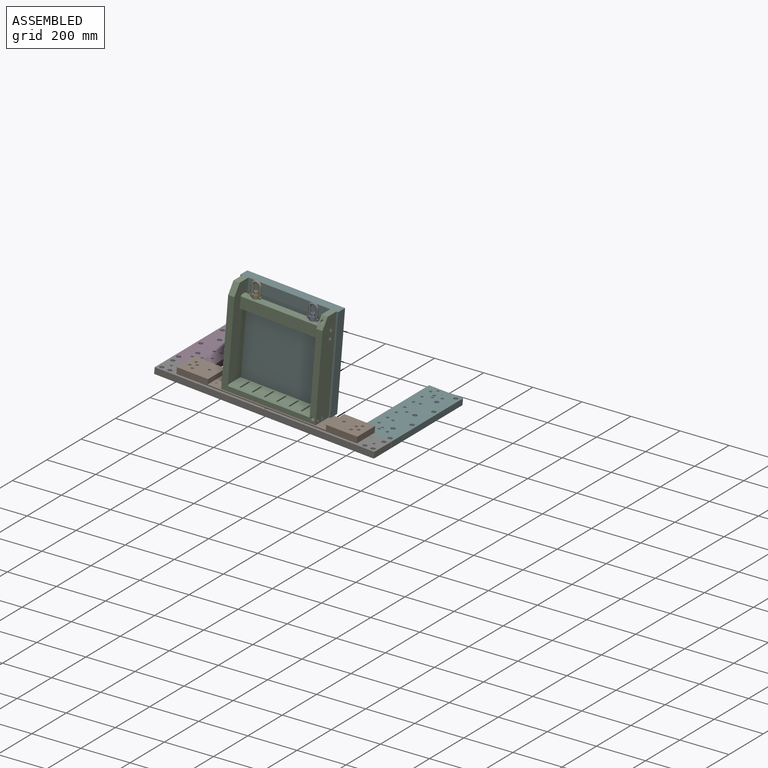
[diagram: assembled view]
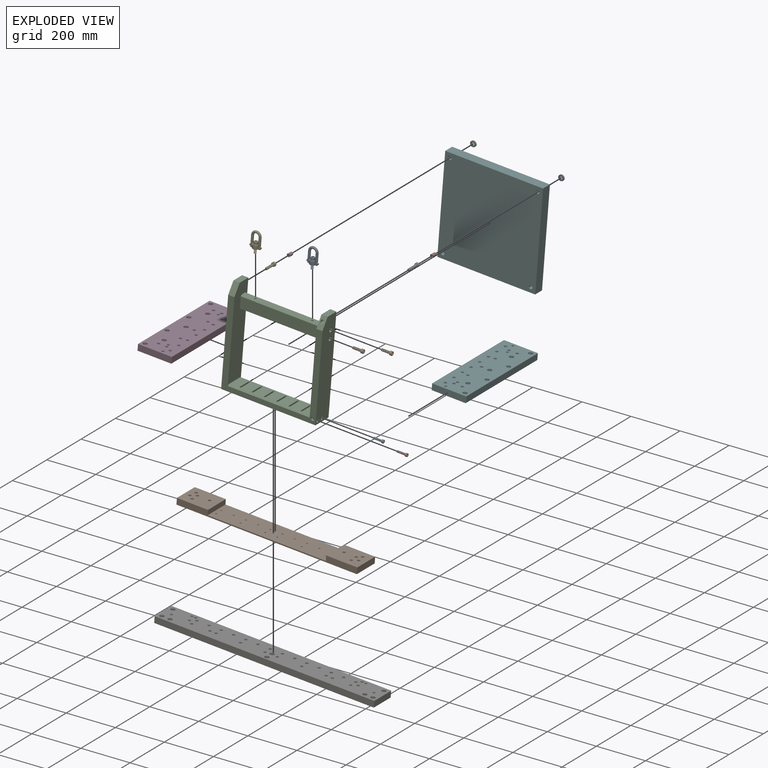
[diagram: exploded view]
GUIDED TOUR — MATED ASSEMBLY WITH SUBASSEMBLIES (Onshape document 2e98514b22ffc82cd9aeb843, AutoMate assembly 2e98514b22ffc82cd9aeb843_ddf671fd6050322d3ed2cb32_9506bc91af3bad2d1c995257_default)

This assembly has 25 component occurrences arranged in 18 top-level units: 15 individual components plus 3 subassemblies (S0, S1, S2). The tour has two levels: first the top level, where each subassembly is treated as one rigid unit; then each subassembly is toured internally in its own section (nesting deeper than one subassembly level is flattened into its subassembly's section).

Components are labeled P0..P24 across the whole record; subassembly units are labeled S0..S2. A mate is a constraint between two units; its type names the relative motion it leaves free:
  CYLINDRICAL — leaves both rotation about and translation along the listed axis free,
  PLANAR — leaves sliding in the plane through the listed point (normal = the listed direction) and rotation about that normal free.
Axis/direction vectors are unit vectors and 'through' points are millimeter coordinates, both in the assembly's world frame.

TOP-LEVEL MATES (between units; each subassembly's internal mates are listed in its own section)
  1. PLANAR "Planar 15": P15 <-> P13, direction (0.000, -1.000, 0.000) through (-750.69, 109.16, 287.09) mm
  2. PLANAR "Planar 11": P0 <-> P6, direction (0.000, -1.000, 0.000) through (-392.07, 103.76, 257.72) mm
  3. PLANAR "Planar 6": P16 <-> P7, direction (0.000, -1.000, 0.000) through (-230.72, 92.02, -154.45) mm
  4. PLANAR "Planar 1": P24 <-> P7, direction (-0.081, 0.000, -0.997) through (-605.76, 55.00, -111.28) mm
  5. PLANAR "Planar 2": P14 <-> P7, direction (-0.997, 0.000, 0.081) through (-1056.01, 300.52, -87.49) mm
  6. PLANAR "Planar 8": P6 <-> P24, direction (-0.081, 0.000, -0.997) through (-602.21, 103.76, -106.47) mm
  7. CYLINDRICAL "Cylindrical 16": S0 <-> P22, axis (0.997, 0.000, -0.081) through (-413.10, 45.66, -109.08) mm
  8. PLANAR "Planar 21": P22 <-> S0, direction (-0.997, 0.000, 0.081) through (-417.08, 42.47, -108.75) mm
  9. CYLINDRICAL "Cylindrical 4": P6 <-> P13, axis (0.000, 1.000, 0.000) through (-750.89, 93.76, 286.84) mm
  10. CYLINDRICAL "Cylindrical 11": S0 <-> S1, axis (0.081, 0.000, 0.997) through (-690.09, 58.36, 251.00) mm
  11. PLANAR "Planar 9": P21 <-> P6, direction (0.000, 1.000, 0.000) through (-392.07, 103.76, 257.72) mm
  12. CYLINDRICAL "Cylindrical 6": P17 <-> P6, axis (0.000, -1.000, 0.000) through (-392.07, 114.16, 257.72) mm
  13. PLANAR "Planar 19": P10 <-> S0, direction (-0.997, 0.000, 0.081) through (-394.90, 55.86, 189.35) mm
  14. PLANAR "Planar 3": P7 <-> P14, direction (0.000, 1.000, 0.000) through (-608.48, 92.02, -123.80) mm
  15. CYLINDRICAL "Cylindrical 7": P13 <-> P6, axis (0.000, 1.000, 0.000) through (-750.89, 106.46, 286.84) mm
  16. PLANAR "Planar 4": P7 <-> P14, direction (0.081, 0.000, 0.997) through (-951.32, 47.02, -83.25) mm
  17. PLANAR "Planar 13": P13 <-> P6, direction (0.000, -1.000, 0.000) through (-750.89, 103.76, 286.84) mm
  18. CYLINDRICAL "Cylindrical 8": P15 <-> P6, axis (0.000, -1.000, 0.000) through (-750.89, 114.16, 286.84) mm
  19. PLANAR "Planar 10": P6 <-> S0, direction (0.000, -1.000, 0.000) through (-586.03, 83.76, 92.87) mm
  20. CYLINDRICAL "Cylindrical 2": P6 <-> S0, axis (0.000, 1.000, 0.000) through (-780.00, 103.76, -71.98) mm
  21. CYLINDRICAL "Cylindrical 9": S2 <-> S0, axis (-0.081, 0.000, -0.997) through (-456.39, 58.36, 250.20) mm
  22. CYLINDRICAL "Cylindrical 3": P21 <-> P6, axis (0.000, -1.000, 0.000) through (-392.07, 94.26, 257.72) mm
  23. CYLINDRICAL "Cylindrical 10": S0 <-> P6, axis (0.000, 1.000, 0.000) through (-750.89, 83.76, 286.84) mm
  24. CYLINDRICAL "Cylindrical 12": P1 <-> S0, axis (-0.997, 0.000, 0.081) through (-387.60, 58.36, 217.54) mm
  25. CYLINDRICAL "Cylindrical 13": P10 <-> S0, axis (-0.997, 0.000, 0.081) through (-390.27, 58.36, 184.63) mm
  26. PLANAR "Planar 16": S2 <-> S0, direction (-0.081, 0.000, -0.997) through (-457.85, 58.36, 232.16) mm
  27. PLANAR "Planar 12": P17 <-> P0, direction (0.000, -1.000, 0.000) through (-392.07, 109.16, 257.72) mm
  28. PLANAR "Planar 20": P8 <-> S0, direction (-0.997, 0.000, 0.081) through (-417.08, 17.07, -108.75) mm
  29. PLANAR "Planar 5": P16 <-> P7, direction (0.081, 0.000, 0.997) through (-243.65, 221.02, -140.66) mm
  30. CYLINDRICAL "Cylindrical 1": P24 <-> P7, axis (0.081, 0.000, 0.997) through (-944.77, 77.02, -64.31) mm
  31. CYLINDRICAL "Cylindrical 5": P0 <-> P21, axis (0.000, 1.000, 0.000) through (-392.07, 109.16, 257.72) mm
  32. PLANAR "Planar 7": P16 <-> P7, direction (0.997, 0.000, -0.081) through (-160.95, 301.02, -160.11) mm
  33. PLANAR "Planar 17": S1 <-> S0, direction (-0.081, 0.000, -0.997) through (-690.09, 58.36, 251.00) mm
  34. PLANAR "Planar 14": P3 <-> P13, direction (0.000, 1.000, 0.000) through (-750.89, 103.76, 286.84) mm
  35. PLANAR "Planar 18": P1 <-> S0, direction (-0.997, 0.000, 0.081) through (-392.23, 55.86, 222.26) mm
  36. CYLINDRICAL "Cylindrical 15": P8 <-> S0, axis (-0.997, 0.000, 0.081) through (-413.10, 20.26, -109.08) mm
  37. CYLINDRICAL "Cylindrical 14": P3 <-> P15, axis (0.000, -1.000, 0.000) through (-750.89, 94.26, 286.84) mm

TOP-LEVEL ASSEMBLY ORDER
  1. S0 — the base component [order verified]
  2. P10 [order verified]
  3. S2 [order verified]
  4. S1 [order verified]
  5. P1 [order verified]
  6. P15 [order verified]
  7. P3 [order verified]
  8. P17 [order verified]
  9. P21 [order verified]
  10. P22 [order verified]
  11. P8 [order verified]
  12. P13 [order verified]
  13. P0 [order verified]
  14. P6 [order verified]
  15. P24 [order verified]
  16. P7 [order verified]
  17. P16 [order verified]
  18. P14 [order verified]
(P0, P1, P3, S1, P8, S2, P10, P13, P15, P21, P22 verified with a relaxed clearance tolerance: the source model stores slight part interference there.)
Order-tag legend:
  [order verified] — this step's position reverses a verified removal order: the component was checked to insert without passing through the ones already placed.

Of the 25 component occurrences, 4 carry the full construction recipe — the FeatureScript program that regenerates the part's solid from scratch; the rest are supplied as boundary geometry only. Each toured unit is shown spotlighted twice — assembled, then exploded with a leader line back to its socket (green = recipe-attached component, orange = geometry-only, blue = subassembly unit; the rest desaturated gray).
NOTE — document 3 of 3 of this assembly tour. The two overview renders and the header above are repeated from document 1; the component sections below continue where the previous document stopped.
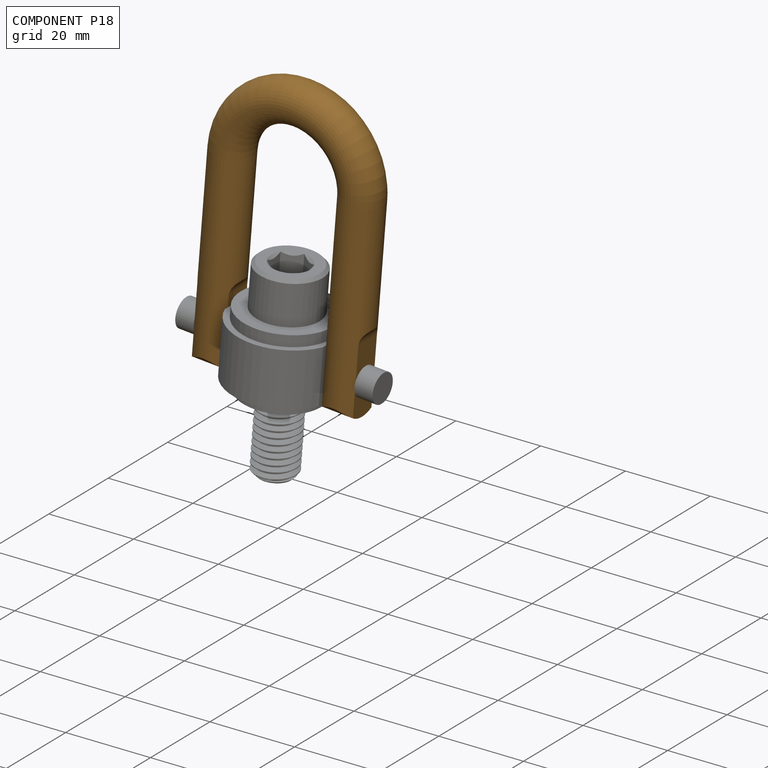
[diagram: component P18 — assembled]
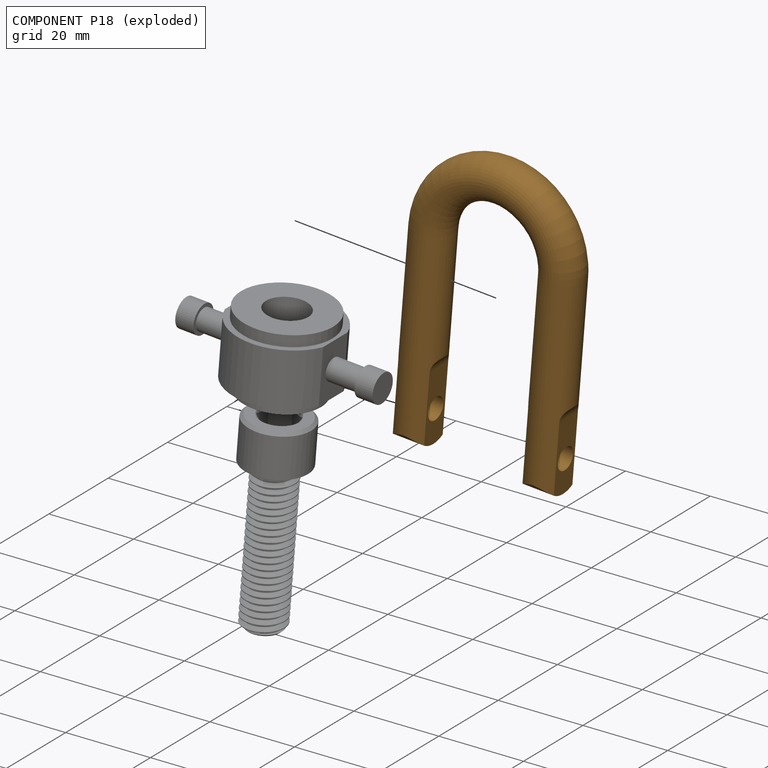
[diagram: component P18 — exploded]
COMPONENT P18 — geometry summary (no construction recipe available for this part):
  bounding box: 68.4 x 43.7 x 9.7 mm
  B-rep topology: 1 solid, 15 faces, 84 edges
  volume: 9675 mm^3 (33% of its bounding box)
  symmetry: 2-fold rotationally symmetric about the y axis; mirror-symmetric across its x mid-plane, z mid-plane
Held by: PLANAR mate "Planar 2" to P23; CYLINDRICAL mate "Cylindrical 2" to P23; PLANAR mate "Planar 2" to P23; CYLINDRICAL mate "Cylindrical 2" to P23.
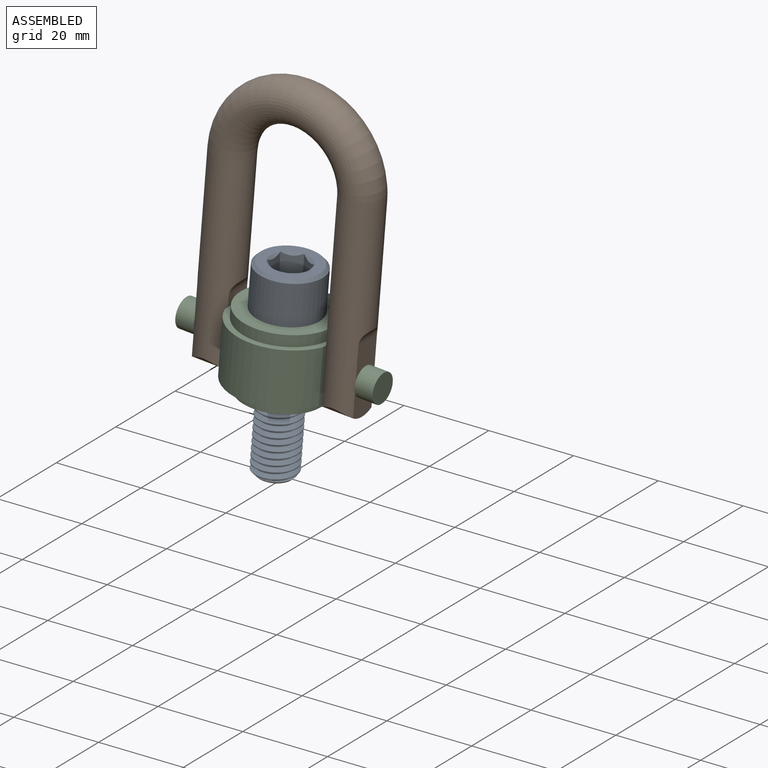
[diagram: subassembly S2 — assembled view]
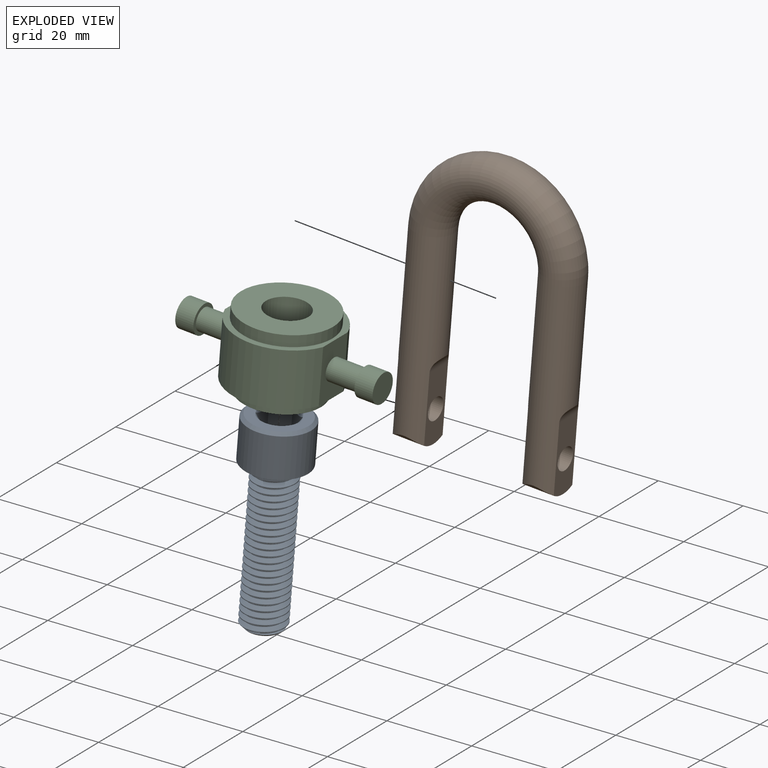
[diagram: subassembly S2 — exploded view]
SUBASSEMBLY S2 TOUR — 3 components, shown here in isolation at its own camera.

INTERNAL MATES
  1. PLANAR "Planar 2": P12 <-> P19, direction (0.997, 0.000, -0.081) through (-467.99, 55.24, 251.14) mm
  2. PLANAR "Planar 1": P9 <-> P19, direction (-0.081, 0.000, -0.997) through (-456.39, 58.36, 250.20) mm
  3. CYLINDRICAL "Cylindrical 2": P12 <-> P19, axis (0.997, 0.000, -0.081) through (-472.42, 58.36, 242.42) mm
  4. CYLINDRICAL "Cylindrical 1": P9 <-> P19, axis (-0.081, 0.000, -0.997) through (-456.00, 58.36, 254.93) mm
  5. CYLINDRICAL "Cylindrical 2": P12 <-> P19, axis (0.997, 0.000, -0.081) through (-472.42, 58.36, 242.42) mm
  6. PLANAR "Planar 1": P9 <-> P19, direction (-0.081, 0.000, -0.997) through (-456.39, 58.36, 250.20) mm
  7. PLANAR "Planar 2": P12 <-> P19, direction (0.997, 0.000, -0.081) through (-467.99, 55.24, 251.14) mm
  8. CYLINDRICAL "Cylindrical 1": P9 <-> P19, axis (-0.081, 0.000, -0.997) through (-456.00, 58.36, 254.93) mm

ASSEMBLY ORDER (within the subassembly)
  1. P19 — the base component [order heuristic]
  2. P9 [order heuristic]
  3. P12 [order heuristic]
Order-tag legend:
  [order heuristic] — this assembly is geometrically interlocked (no collision-free removal order exists), so components are listed in mate-graph order; insertion feasibility is not verified.
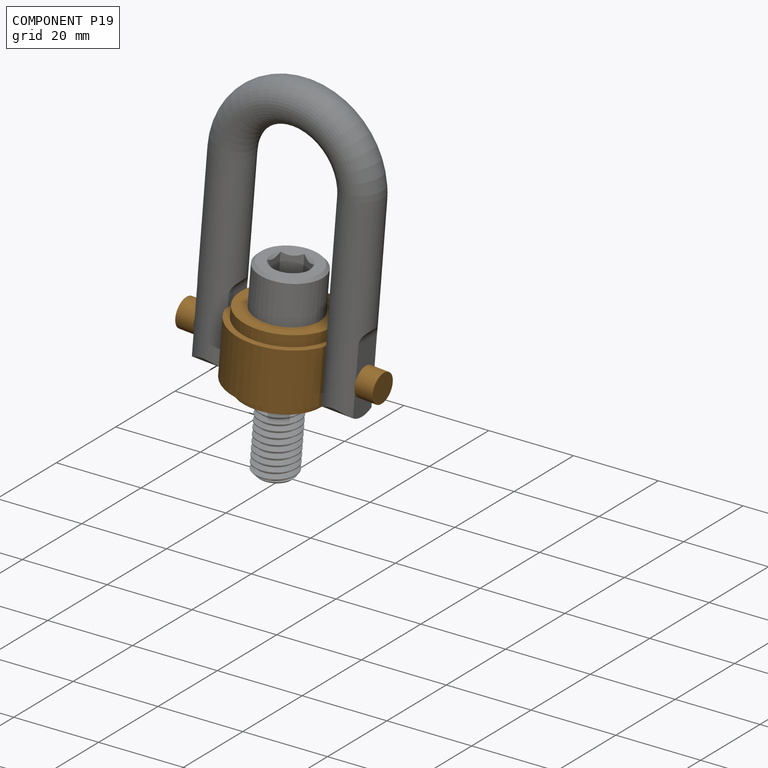
[diagram: component P19 — assembled]
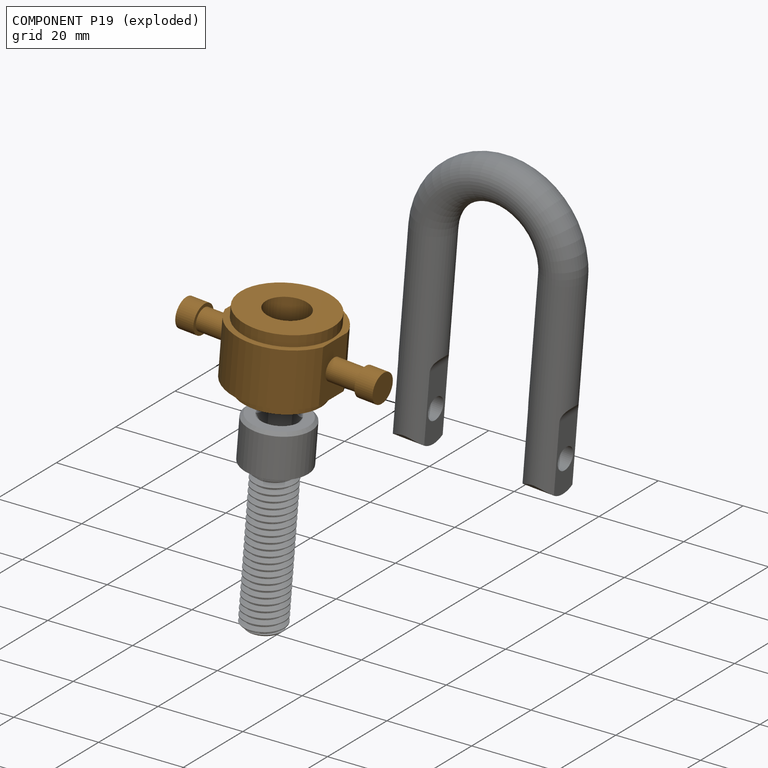
[diagram: component P19 — exploded]
COMPONENT P19 — geometry summary (no construction recipe available for this part):
  bounding box: 46.7 x 24.7 x 18.1 mm
  B-rep topology: 1 solid, 20 faces, 88 edges
  volume: 7171 mm^3 (34% of its bounding box)
  symmetry: 2-fold rotationally symmetric about the y axis; mirror-symmetric across its x mid-plane, z mid-plane
Held by: PLANAR mate "Planar 2" to P12; PLANAR mate "Planar 1" to P9; CYLINDRICAL mate "Cylindrical 2" to P12; CYLINDRICAL mate "Cylindrical 1" to P9; CYLINDRICAL mate "Cylindrical 2" to P12; PLANAR mate "Planar 1" to P9; PLANAR mate "Planar 2" to P12; CYLINDRICAL mate "Cylindrical 1" to P9.
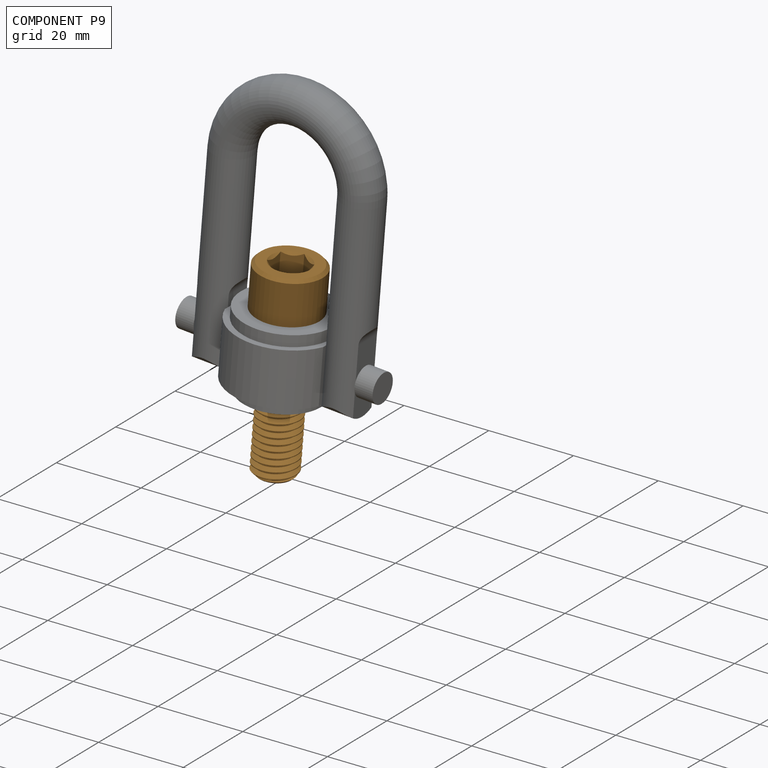
[diagram: component P9 — assembled]
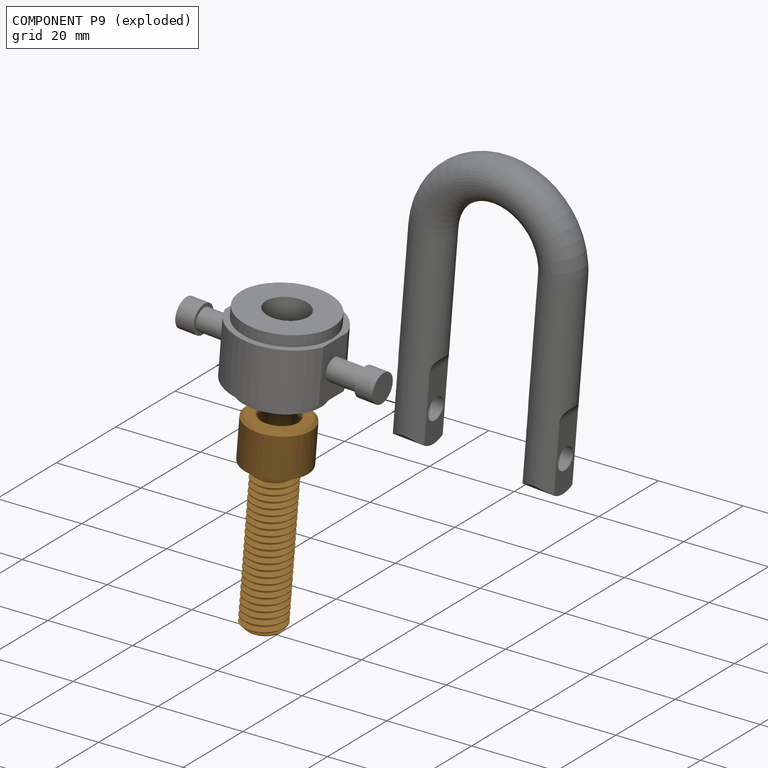
[diagram: component P9 — exploded]
COMPONENT P9 — geometry summary (no construction recipe available for this part):
  bounding box: 47.2 x 15.7 x 15.7 mm
  B-rep topology: 1 solid, 46 faces, 322 edges
  volume: 3891 mm^3 (33% of its bounding box)
  symmetry: 6-fold rotationally symmetric about the y axis
Held by: PLANAR mate "Planar 1" to P19; CYLINDRICAL mate "Cylindrical 1" to P19; PLANAR mate "Planar 1" to P19; CYLINDRICAL mate "Cylindrical 1" to P19.
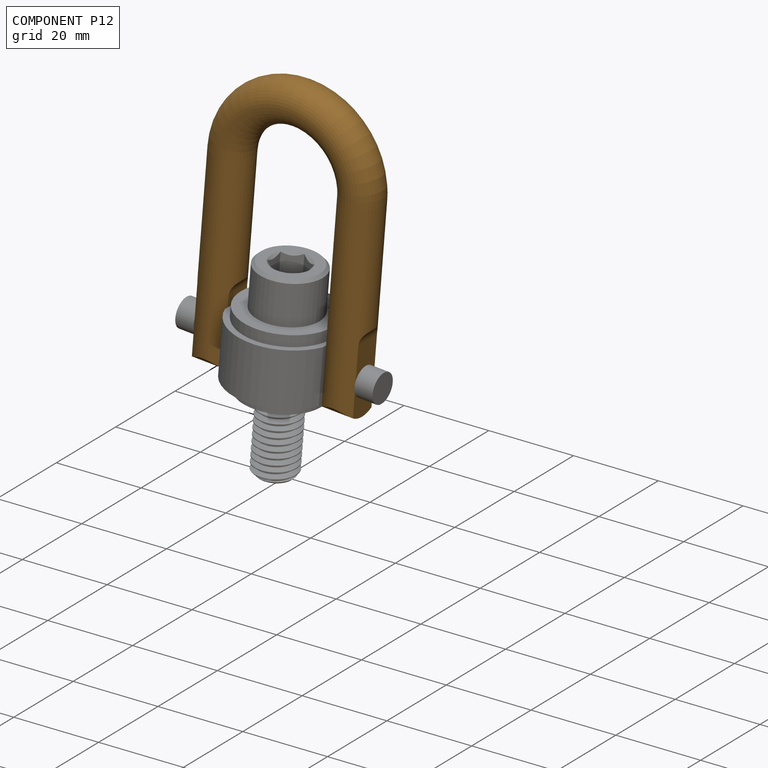
[diagram: component P12 — assembled]
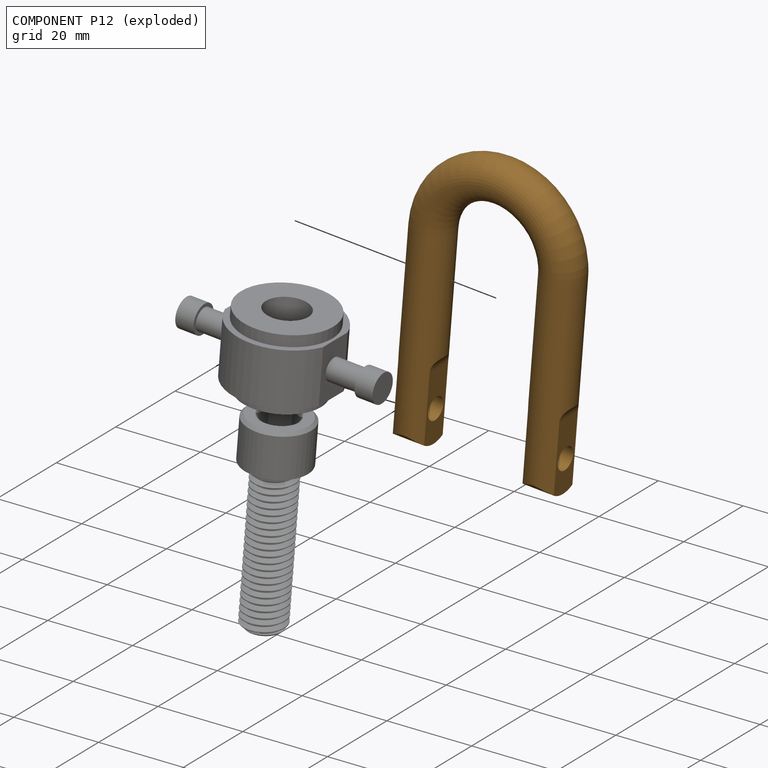
[diagram: component P12 — exploded]
COMPONENT P12 — geometry summary (no construction recipe available for this part):
  bounding box: 68.4 x 43.7 x 9.7 mm
  B-rep topology: 1 solid, 15 faces, 84 edges
  volume: 9675 mm^3 (33% of its bounding box)
  symmetry: 2-fold rotationally symmetric about the y axis; mirror-symmetric across its x mid-plane, z mid-plane
Held by: PLANAR mate "Planar 2" to P19; CYLINDRICAL mate "Cylindrical 2" to P19; CYLINDRICAL mate "Cylindrical 2" to P19; PLANAR mate "Planar 2" to P19.
PROVENANCE & LICENSES
Assembly (occurrences, transforms, mates, per-part STEP geometry): AutoMate dataset, Zenodo record 7776208, CC0.
Construction recipes: CADFS (HuggingFace VladPyatov/CADFS, CC-BY-4.0, layered over the ABC dataset), FeatureScript reconstruction programs keyed by ABC model id.
Join: ABC meta listings map ABC model id -> Onshape documentId; within a shared document, parts are matched by geometric signature (bounding-box dims + volume at 0.1% relative tolerance, exact B-rep face/solid counts).
Verification: 4 of this assembly's 25 components carry a recipe attachment, and every attachment is mesh-verified: the CADFS STEP and the AutoMate member STEP were compared as meshes in their shared local frame (symmetric sampled-point-to-mesh distance); worst across the 4 attachments: below the mesh-comparison resolution (tessellation chordal tolerance ~0.612 mm) on a 408 mm part.
Renders: orthographic iso camera (az 35 / el 25); the floor grid conveys scale (grid pitch printed in each image; no ruler). In the exploded view each component is displaced by its stored offset vector: the offsets alone carry the explosion direction (mate normal/axis signs are not orientation cues and do not encode it), and separation distances are assigned per mate-chain, not proportionally to assembly-order depth.
